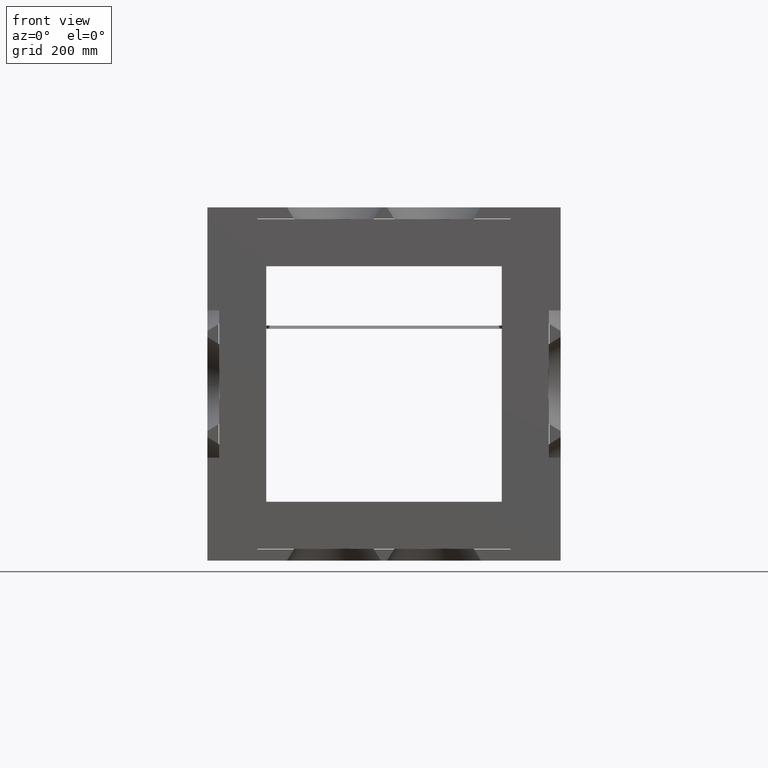
[diagram: clean part render]
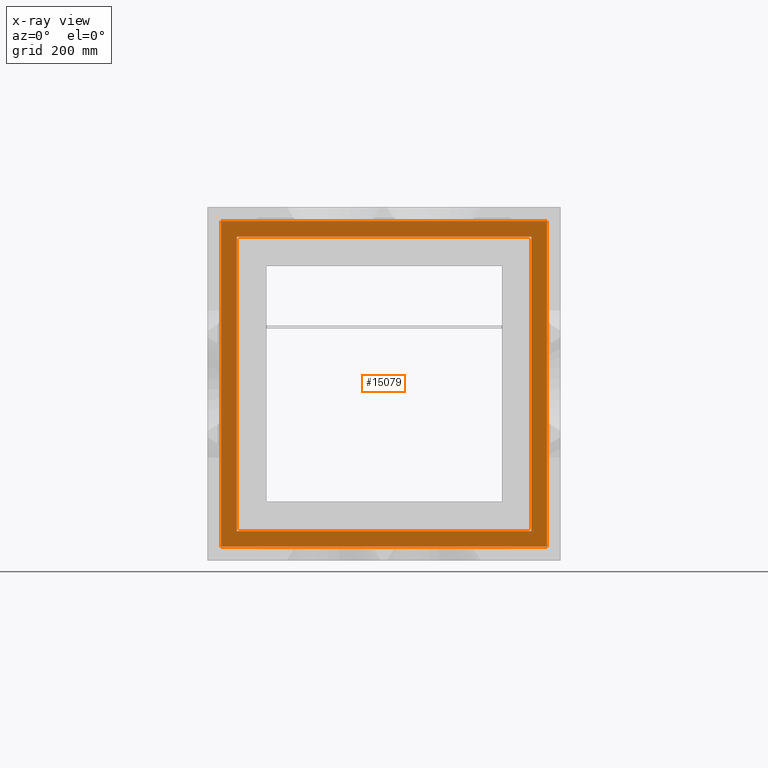
[diagram: x-ray — body ghosted, one internal face saturated and labeled with its STEP entity id]
A machine part, front view, then the same camera in x-ray: the body is ghosted and one INTERNAL B-rep face — a face not visible from any outside direction — is saturated and labeled: STEP entity #15079.
In plain terms, the highlighted planar face has unit normal (0, -1, -0).
Its self-contained STEP definition (entity closure, byte-faithful):
#822 = VECTOR ( 'NONE', #39408, 1000.000000000000000 ) ;
#1574 = EDGE_CURVE ( 'NONE', #31049, #29702, #35255, .T. ) ;
#2175 = CARTESIAN_POINT ( 'NONE',  ( -500.0000000000005684, 1529.999999999999318, -500.0000000000001137 ) ) ;
#2855 = VERTEX_POINT ( 'NONE', #4425 ) ;
#3444 = DIRECTION ( 'NONE',  ( 4.617429402512937596E-16, -1.665334536937734811E-16, -1.000000000000000000 ) ) ;
#3821 = VECTOR ( 'NONE', #10654, 1000.000000000000000 ) ;
#4160 = LINE ( 'NONE', #28920, #8069 ) ;
#4254 = CARTESIAN_POINT ( 'NONE',  ( -553.0000000000004547, 1529.999999999999318, -602.0000000000002274 ) ) ;
#4425 = CARTESIAN_POINT ( 'NONE',  ( 499.9999999999989768, 1529.999999999999773, 500.0000000000003411 ) ) ;
#4553 = EDGE_CURVE ( 'NONE', #37929, #9931, #19706, .T. ) ;
#5916 = ORIENTED_EDGE ( 'NONE', *, *, #4553, .T. ) ;
#6155 = CARTESIAN_POINT ( 'NONE',  ( -500.0000000000005684, 1529.999999999999318, -500.0000000000001137 ) ) ;
#7833 = DIRECTION ( 'NONE',  ( 1.000000000000000000, 1.907720574944769541E-16, 4.617429402512937596E-16 ) ) ;
#8069 = VECTOR ( 'NONE', #7833, 1000.000000000000000 ) ;
#9931 = VERTEX_POINT ( 'NONE', #10587 ) ;
#10537 = CARTESIAN_POINT ( 'NONE',  ( -600.0000000000012506, 1529.999999999999773, 553.0000000000000000 ) ) ;
#10587 = CARTESIAN_POINT ( 'NONE',  ( 552.9999999999992042, 1529.999999999999773, 553.0000000000004547 ) ) ;
#10654 = DIRECTION ( 'NONE',  ( -4.617429402512937596E-16, 1.665334536937734811E-16, 1.000000000000000000 ) ) ;
#10819 = DIRECTION ( 'NONE',  ( 1.000000000000000000, 1.907720574944769541E-16, 4.617429402512937596E-16 ) ) ;
#11147 = ORIENTED_EDGE ( 'NONE', *, *, #31870, .F. ) ;
#12081 = VECTOR ( 'NONE', #3444, 1000.000000000000000 ) ;
#12111 = LINE ( 'NONE', #29530, #32674 ) ;
#13440 = CARTESIAN_POINT ( 'NONE',  ( -553.0000000000005684, 1529.999999999999318, -553.0000000000001137 ) ) ;
#14738 = VERTEX_POINT ( 'NONE', #40210 ) ;
#14936 = ORIENTED_EDGE ( 'NONE', *, *, #1574, .F. ) ;
#15079 = ADVANCED_FACE ( 'NONE', ( #22722, #26609 ), #21043, .F. ) ;
#15092 = EDGE_CURVE ( 'NONE', #29702, #14738, #29367, .T. ) ;
#15983 = EDGE_CURVE ( 'NONE', #17144, #9931, #12111, .T. ) ;
#16055 = CARTESIAN_POINT ( 'NONE',  ( 499.9999999999994316, 1529.999999999999773, -499.9999999999996589 ) ) ;
#16268 = DIRECTION ( 'NONE',  ( 1.000000000000000000, 1.907720574944769541E-16, 4.617429402512937596E-16 ) ) ;
#16880 = VECTOR ( 'NONE', #44219, 1000.000000000000000 ) ;
#17144 = VERTEX_POINT ( 'NONE', #44387 ) ;
#19706 = LINE ( 'NONE', #10537, #822 ) ;
#20060 = EDGE_CURVE ( 'NONE', #14738, #2855, #4160, .T. ) ;
#21043 = PLANE ( 'NONE',  #34641 ) ;
#21535 = LINE ( 'NONE', #38857, #12081 ) ;
#22394 = DIRECTION ( 'NONE',  ( -4.617429402512937596E-16, 1.665334536937734811E-16, 1.000000000000000000 ) ) ;
#22722 = FACE_BOUND ( 'NONE', #44136, .T. ) ;
#24988 = ORIENTED_EDGE ( 'NONE', *, *, #37865, .F. ) ;
#25334 = LINE ( 'NONE', #41236, #33669 ) ;
#25935 = ORIENTED_EDGE ( 'NONE', *, *, #20060, .F. ) ;
#26609 = FACE_OUTER_BOUND ( 'NONE', #36567, .T. ) ;
#28920 = CARTESIAN_POINT ( 'NONE',  ( -500.0000000000010232, 1529.999999999999773, 499.9999999999998863 ) ) ;
#29367 = LINE ( 'NONE', #42893, #3821 ) ;
#29530 = CARTESIAN_POINT ( 'NONE',  ( 552.9999999999996589, 1529.999999999999773, -601.9999999999997726 ) ) ;
#29702 = VERTEX_POINT ( 'NONE', #6155 ) ;
#29927 = EDGE_CURVE ( 'NONE', #40014, #37929, #46001, .T. ) ;
#29988 = ORIENTED_EDGE ( 'NONE', *, *, #15092, .F. ) ;
#31049 = VERTEX_POINT ( 'NONE', #16055 ) ;
#31870 = EDGE_CURVE ( 'NONE', #40014, #17144, #25334, .T. ) ;
#32085 = DIRECTION ( 'NONE',  ( 1.907720574944769541E-16, -1.000000000000000000, -2.306869396762967584E-31 ) ) ;
#32674 = VECTOR ( 'NONE', #36542, 1000.000000000000000 ) ;
#33669 = VECTOR ( 'NONE', #16268, 1000.000000000000000 ) ;
#34641 = AXIS2_PLACEMENT_3D ( 'NONE', #39368, #32085, #10819 ) ;
#35255 = LINE ( 'NONE', #2175, #16880 ) ;
#35774 = CARTESIAN_POINT ( 'NONE',  ( -553.0000000000010232, 1529.999999999999773, 553.0000000000002274 ) ) ;
#36542 = DIRECTION ( 'NONE',  ( -4.617429402512937596E-16, 1.665334536937734811E-16, 1.000000000000000000 ) ) ;
#36567 = EDGE_LOOP ( 'NONE', ( #5916, #41451, #11147, #45435 ) ) ;
#37865 = EDGE_CURVE ( 'NONE', #2855, #31049, #21535, .T. ) ;
#37929 = VERTEX_POINT ( 'NONE', #35774 ) ;
#38857 = CARTESIAN_POINT ( 'NONE',  ( 499.9999999999994316, 1529.999999999999773, -499.9999999999996589 ) ) ;
#39368 = CARTESIAN_POINT ( 'NONE',  ( 599.9999999999995453, 1529.999999999999773, -599.9999999999996589 ) ) ;
#39408 = DIRECTION ( 'NONE',  ( 1.000000000000000000, 1.907720574944769541E-16, 4.617429402512937596E-16 ) ) ;
#40014 = VERTEX_POINT ( 'NONE', #13440 ) ;
#40210 = CARTESIAN_POINT ( 'NONE',  ( -500.0000000000010232, 1529.999999999999773, 499.9999999999998863 ) ) ;
#41236 = CARTESIAN_POINT ( 'NONE',  ( -600.0000000000006821, 1529.999999999999318, -553.0000000000001137 ) ) ;
#41451 = ORIENTED_EDGE ( 'NONE', *, *, #15983, .F. ) ;
#42149 = VECTOR ( 'NONE', #22394, 1000.000000000000000 ) ;
#42893 = CARTESIAN_POINT ( 'NONE',  ( -500.0000000000005684, 1529.999999999999318, -500.0000000000001137 ) ) ;
#44136 = EDGE_LOOP ( 'NONE', ( #14936, #24988, #25935, #29988 ) ) ;
#44219 = DIRECTION ( 'NONE',  ( -1.000000000000000000, -1.907720574944769541E-16, -4.617429402512937596E-16 ) ) ;
#44387 = CARTESIAN_POINT ( 'NONE',  ( 552.9999999999996589, 1529.999999999999773, -552.9999999999996589 ) ) ;
#45435 = ORIENTED_EDGE ( 'NONE', *, *, #29927, .T. ) ;
#46001 = LINE ( 'NONE', #4254, #42149 ) ;